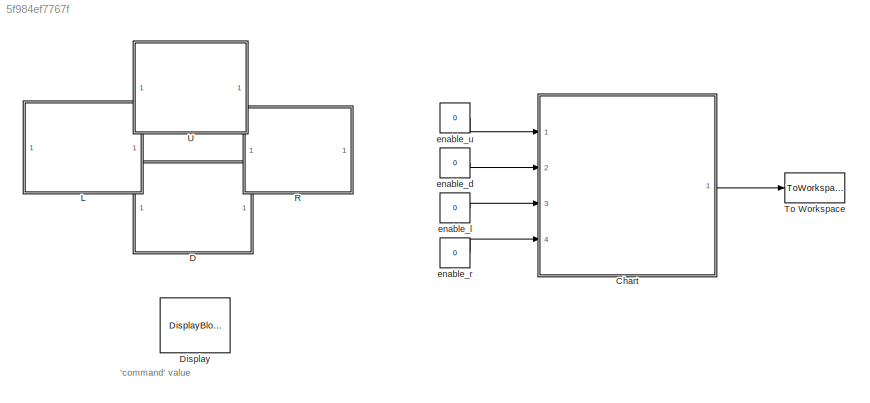
MODEL slx_5f984ef7767f
KIND model
CONFIG AbsTol = auto
CONFIG EnableMultiTasking = off
CONFIG FixedStep = auto
CONFIG MaxStep = auto
CONFIG MinStep = auto
CONFIG RelTol = 1e-3
CONFIG SampleTimeConstraint = Unconstrained
CONFIG Solver = VariableStepAuto
CONFIG SolverName = VariableStepAuto
CONFIG StartTime = 0.0
CONFIG StopTime = inf
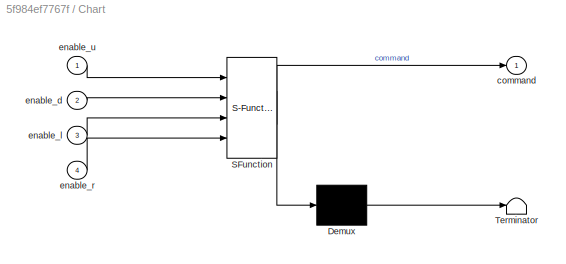
BLOCK [SubSystem] Chart
  ErrorFcn = Stateflow.Translate.translate
  PermitHierarchicalResolution = ExplicitOnly
  Ports = [4, 1]
  RequestExecContextInheritance = off
  SFBlockType = Chart
  TreatAsAtomicUnit = on
BLOCK [Demux] Chart/ Demux 
  Outputs = 1
  Ports = [1, 1]
BLOCK [S-Function] Chart/ SFunction 
  EnableBusSupport = on
  FunctionName = sf_sfun
  PortCounts = [4 2]
  Ports = [4, 2]
  SFcnIsStateOwnerBlock = off
  SFunctionDeploymentMode = off
  Tag = Stateflow S-Function controlStates 3
BLOCK [Terminator] Chart/ Terminator 
BLOCK [Outport] Chart/command
  IconDisplay = Port number
BLOCK [Inport] Chart/enable_d
  IconDisplay = Port number
  Port = 2
BLOCK [Inport] Chart/enable_l
  IconDisplay = Port number
  Port = 3
BLOCK [Inport] Chart/enable_r
  IconDisplay = Port number
  Port = 4
BLOCK [Inport] Chart/enable_u
  IconDisplay = Port number
BLOCK [SubSystem] D
  DialogController = hmiCreateDDGDialog
  IsWebBlock = on
  Ports = []
  RequestExecContextInheritance = off
BLOCK [DisplayBlock] Display
  LabelPosition = Hide
  WebBlockId = 14
BLOCK [SubSystem] L 
  DialogController = hmiCreateDDGDialog
  IsWebBlock = on
  Ports = []
  RequestExecContextInheritance = off
BLOCK [SubSystem] R
  DialogController = hmiCreateDDGDialog
  IsWebBlock = on
  Ports = []
  RequestExecContextInheritance = off
BLOCK [ToWorkspace] To Workspace
  FixptAsFi = on
  MaxDataPoints = inf
  Ports = [1]
  SampleTime = -1
  Save2DSignal = 3-D array (concatenate along third dimension)
  SaveFormat = Timeseries
  VariableName = command
BLOCK [SubSystem] U
  DialogController = hmiCreateDDGDialog
  IsWebBlock = on
  Ports = []
  RequestExecContextInheritance = off
BLOCK [Constant] enable_d 
  Value = 0
BLOCK [Constant] enable_l 
  Value = 0
BLOCK [Constant] enable_r 
  Value = 0
BLOCK [Constant] enable_u 
  Value = 0
ANNOTATION (root): 'command' value
LINE Chart:1 -> To Workspace:1
LINE enable_d :1 -> Chart:2
LINE enable_l :1 -> Chart:3
LINE enable_r :1 -> Chart:4
LINE enable_u :1 -> Chart:1
CHART Chart states=5 transitions=9
  STATE_LABEL 'no_input\nentry: command = 0\n'
  STATE_LABEL 'up\nentry: command = 1'
  STATE_LABEL 'down\nentry: command = 2'
  STATE_LABEL 'left\nentry: command = 3'
  STATE_LABEL 'right\nentry: command = 4'
